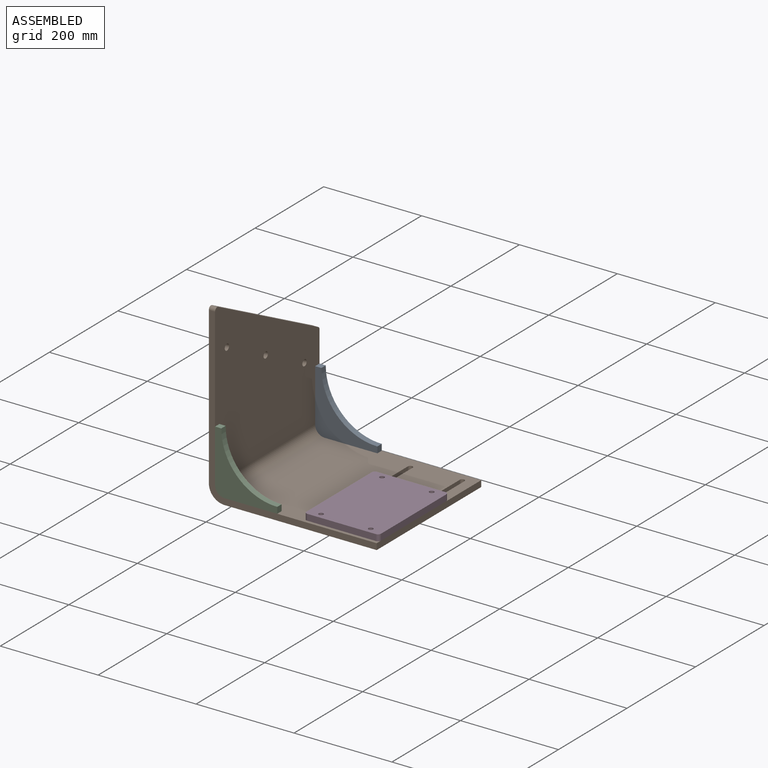
[diagram: assembled view]
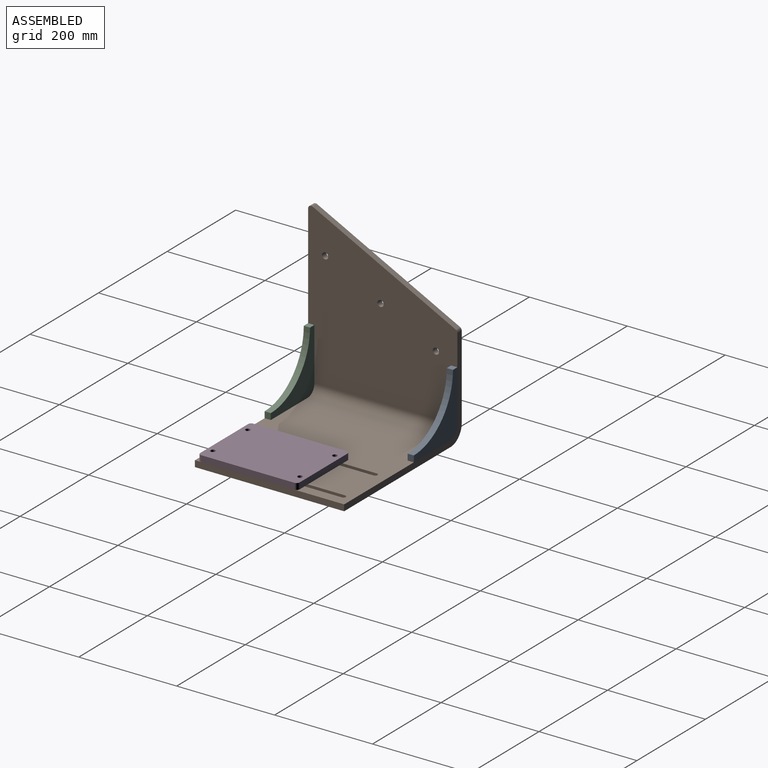
[diagram: assembled view, second angle]
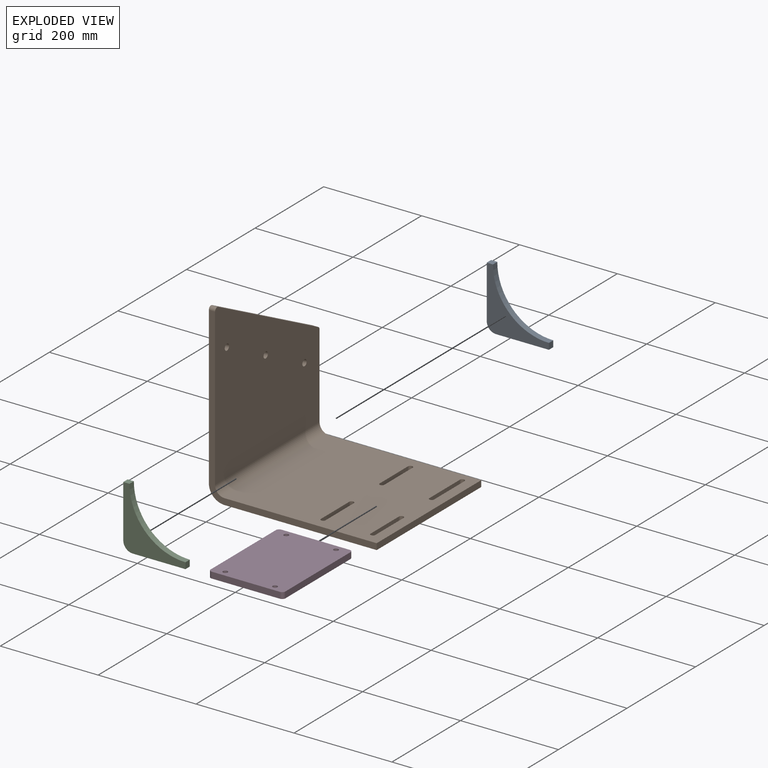
[diagram: exploded view]
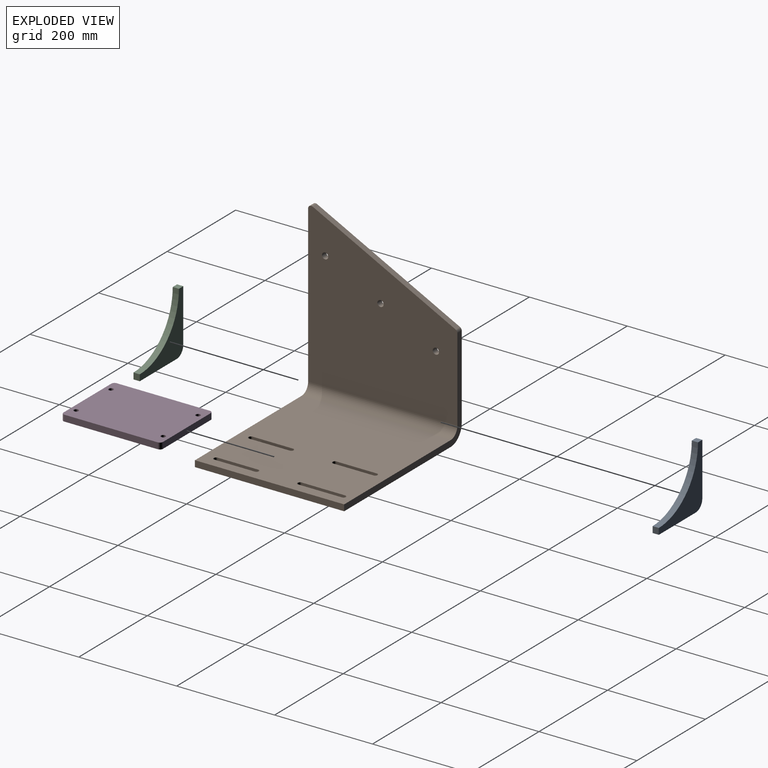
[diagram: exploded view, second angle]
ASSEMBLY  parts=4 mates=3
PART A: 8 faces, bbox 127x12.7x127 mm
  f0: plane 12.7x12.7mm, normal (1,0,0), area 161.3mm2, adj f1,f5,f6,f7
  f1: cylinder r=114.3mm len=114.3mm, axis (0,1,0), area 2280.2mm2, adj f0,f2,f6,f7
  f2: plane 12.7x12.7mm, normal (0,0,1), area 161.3mm2, adj f1,f3,f6,f7
  f3: plane 107.95x12.7mm, normal (-1,0,0), area 1371mm2, adj f2,f4,f6,f7
  f4: cylinder r=19.05mm len=19.05mm, axis (0,1,0), area 380mm2, adj f3,f5,f6,f7
  f5: plane 107.95x12.7mm, normal (0,0,-1), area 1371mm2, adj f0,f4,f6,f7
  f6: plane 127x127mm, normal (0,-1,0), area 5790.3mm2, adj f0,f1,f2,f3,f4,f5
  f7: plane 127x127mm, normal (0,1,0), area 5790.3mm2, adj f0,f1,f2,f3,f4,f5
PART B: 35 faces, bbox 304.8x342.9x357.9 mm
  f0: plane 319.84x12.7mm, normal (-1,0,0), area 4061.9mm2, adj f1,f8,f9,f32
  f1: cylinder r=6.35mm len=12.7mm, axis (0,-1,0), area 164.7mm2, adj f0,f2,f8,f9
  f2: plane 292.1x148.83mm, normal (0.45,0,0.89), area 4163.5mm2, adj f1,f3,f8,f9
  f3: cylinder r=6.35mm len=12.7mm, axis (0,-1,0), area 88.7mm2, adj f2,f4,f8,f9
  f4: plane 171.01x12.7mm, normal (1,0,0), area 2171.8mm2, adj f3,f8,f9,f31
  f5: cylinder r=6.35mm len=12.7mm, axis (0,-1,0), area 506.7mm2, adj f8,f9
  f6: cylinder r=6.35mm len=12.7mm, axis (0,-1,0), area 506.7mm2, adj f8,f9
  f7: cylinder r=6.35mm len=12.7mm, axis (0,-1,0), area 506.7mm2, adj f8,f9
  f8: plane 326.19x304.8mm, normal (0,1,0), area 76569.5mm2, adj f0,f1,f2,f3,f4,f5,f6,f7
  f9: plane 326.19x304.8mm, normal (0,-1,0), area 76569.5mm2, adj f0,f1,f2,f3,f4,f5,f6,f7
  f10: plane 304.8x12.7mm, normal (0,-1,0), area 3871mm2, adj f11,f28,f29,f30
  f11: plane 311.15x12.7mm, normal (-1,0,0), area 3951.6mm2, adj f10,f29,f30,f32
  f12: cylinder r=4.76mm len=12.7mm, axis (0,0,-1), area 190mm2, adj f13,f27,f29,f30
  f13: plane 82.55x12.7mm, normal (0,-1,0), area 1048.4mm2, adj f12,f14,f29,f30
  f14: cylinder r=4.76mm len=12.7mm, axis (0,0,-1), area 190mm2, adj f13,f27,f29,f30
  f15: cylinder r=4.76mm len=12.7mm, axis (0,0,-1), area 190mm2, adj f16,f26,f29,f30
  f16: plane 88.9x12.7mm, normal (0,-1,0), area 1129mm2, adj f15,f17,f29,f30
  f17: cylinder r=4.76mm len=12.7mm, axis (0,0,-1), area 190mm2, adj f16,f26,f29,f30
  f18: cylinder r=4.76mm len=12.7mm, axis (0,0,-1), area 190mm2, adj f19,f25,f29,f30
  f19: plane 82.55x12.7mm, normal (0,-1,0), area 1048.4mm2, adj f18,f20,f29,f30
  f20: cylinder r=4.76mm len=12.7mm, axis (0,0,-1), area 190mm2, adj f19,f25,f29,f30
  f21: cylinder r=4.76mm len=12.7mm, axis (0,0,-1), area 190mm2, adj f22,f24,f29,f30
  f22: plane 82.55x12.7mm, normal (0,-1,0), area 1048.4mm2, adj f21,f23,f29,f30
  f23: cylinder r=4.76mm len=12.7mm, axis (0,0,-1), area 190mm2, adj f22,f24,f29,f30
  f24: plane 82.55x12.7mm, normal (0,1,0), area 1048.4mm2, adj f21,f23,f29,f30
  f25: plane 82.55x12.7mm, normal (0,1,0), area 1048.4mm2, adj f18,f20,f29,f30
  f26: plane 88.9x12.7mm, normal (0,1,0), area 1129mm2, adj f15,f17,f29,f30
  f27: plane 82.55x12.7mm, normal (0,1,0), area 1048.4mm2, adj f12,f14,f29,f30
  f28: plane 311.15x12.7mm, normal (1,0,0), area 3951.6mm2, adj f10,f29,f30,f31
  f29: plane 311.15x304.8mm, normal (0,0,-1), area 91347.9mm2, adj f10,f11,f12,f13,f14,f15,f16,f17
  f30: plane 311.15x304.8mm, normal (0,0,1), area 91347.9mm2, adj f10,f11,f12,f13,f14,f15,f16,f17
  f31: plane 31.75x31.75mm, normal (1,0,0), area 506.7mm2, adj f4,f28,f33,f34
  f32: plane 31.75x31.75mm, normal (-1,0,0), area 506.7mm2, adj f0,f11,f33,f34
  f33: cylinder r=31.75mm len=304.8mm, axis (1,0,0), area 15201.2mm2, adj f8,f29,f31,f32
  f34: cylinder r=19.05mm len=304.8mm, axis (1,0,0), area 9120.7mm2, adj f9,f30,f31,f32
PART C: same geometry as A
PART D: 14 faces, bbox 152.4x12.7x203.2 mm
  f0: plane 190.5x12.7mm, normal (1,0,0), area 2419.3mm2, adj f1,f11,f12,f13
  f1: cylinder r=6.35mm len=12.7mm, axis (0,1,0), area 126.7mm2, adj f0,f2,f12,f13
  f2: plane 139.7x12.7mm, normal (0,0,1), area 1774.2mm2, adj f1,f3,f12,f13
  f3: cylinder r=6.35mm len=12.7mm, axis (0,1,0), area 126.7mm2, adj f2,f4,f12,f13
  f4: plane 190.5x12.7mm, normal (-1,0,0), area 2419.3mm2, adj f3,f5,f12,f13
  f5: cylinder r=6.35mm len=12.7mm, axis (0,1,0), area 126.7mm2, adj f4,f6,f12,f13
  f6: plane 139.7x12.7mm, normal (0,0,-1), area 1774.2mm2, adj f5,f11,f12,f13
  f7: cylinder r=4.76mm len=12.7mm, axis (0,1,0), area 380mm2, adj f12,f13
  f8: cylinder r=4.76mm len=12.7mm, axis (0,1,0), area 380mm2, adj f12,f13
  f9: cylinder r=4.76mm len=12.7mm, axis (0,1,0), area 380mm2, adj f12,f13
  f10: cylinder r=4.76mm len=12.7mm, axis (0,1,0), area 380mm2, adj f12,f13
  f11: cylinder r=6.35mm len=12.7mm, axis (0,1,0), area 126.7mm2, adj f0,f6,f12,f13
  f12: plane 203.2x152.4mm, normal (0,-1,0), area 30648mm2, adj f0,f1,f2,f3,f4,f5,f6,f7
  f13: plane 203.2x152.4mm, normal (0,1,0), area 30648mm2, adj f0,f1,f2,f3,f4,f5,f6,f7
PLACE A t=(90.86,92.3,50.24)mm
PLACE B rot(axis=(0,0,1),90deg) t=(14.66,-60.1,155.01)mm
PLACE C t=(90.86,-199.8,50.24)mm
PLACE D rot(axis=(1,0,0),90deg) t=(281.36,-104.55,-0.56)mm
MATE fastened B.f17 <-> D.f9  axis (0,0,1) through (332.16,-15.65,-13.26)mm
MATE fastened B.f33 <-> C.f4  axis (0,-1,0) through (46.41,-212.5,5.79)mm
MATE fastened B.f33 <-> A.f4  axis (0,1,0) through (46.41,92.3,5.79)mm
